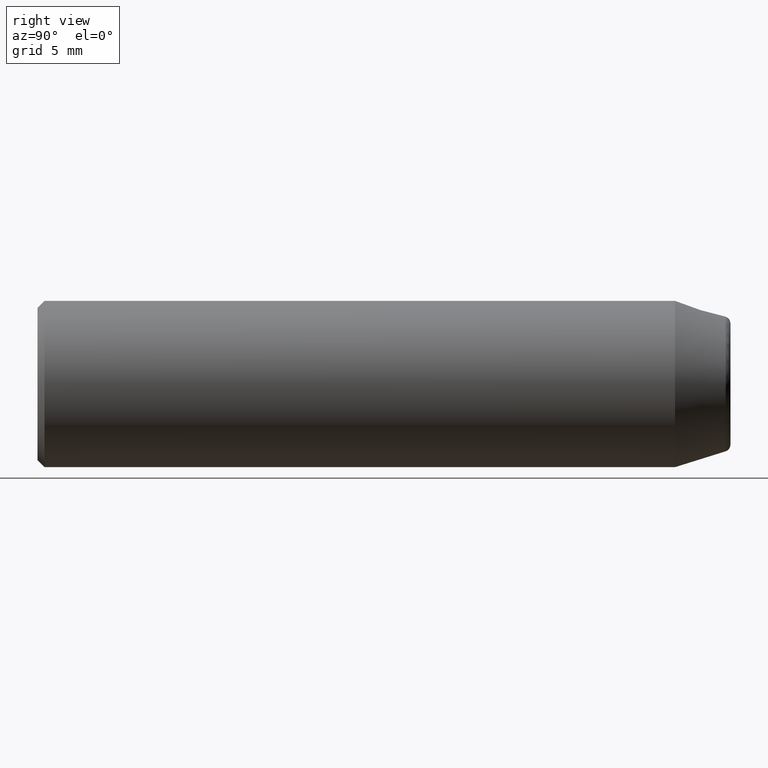
[diagram: clean part render]
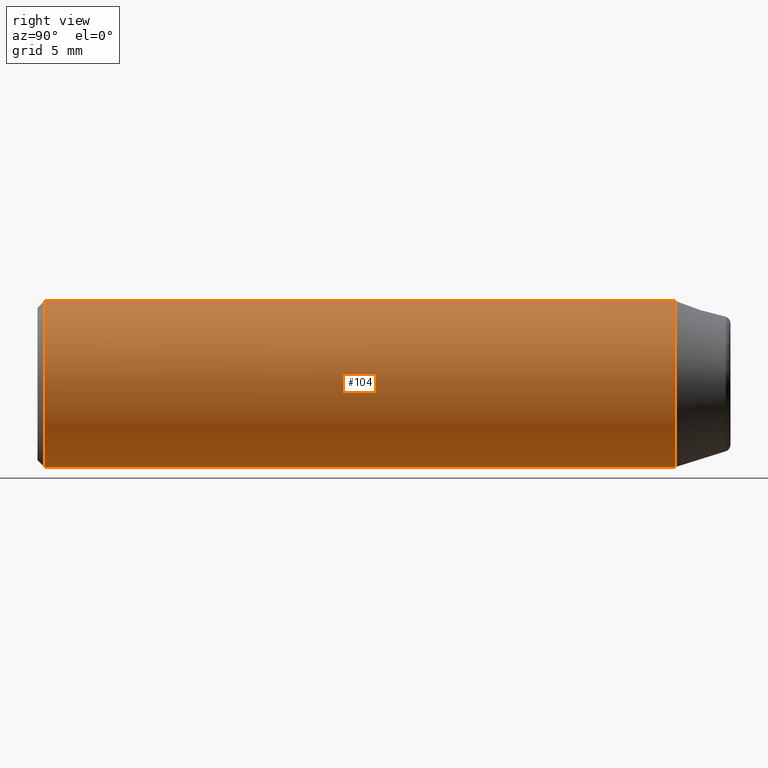
[diagram: same view with one face highlighted and labeled with its STEP entity id]
A machine part, right view. The second image highlights one B-rep face of the part: STEP entity #104.
In plain terms, the highlighted cylindrical surface (bore or boss wall) has radius 6 mm, axis along (-0, -1, -0).
Its self-contained STEP definition (entity closure, byte-faithful):
#10 = CARTESIAN_POINT ( 'NONE',  ( 0.000000000000000000, 45.99999999999998579, 0.000000000000000000 ) ) ;
#51 = DIRECTION ( 'NONE',  ( -0.000000000000000000, -1.000000000000000000, -0.000000000000000000 ) ) ;
#65 = DIRECTION ( 'NONE',  ( -0.000000000000000000, -1.000000000000000000, -0.000000000000000000 ) ) ;
#70 = VERTEX_POINT ( 'NONE', #254 ) ;
#71 = CIRCLE ( 'NONE', #103, 6.000000000000000888 ) ;
#72 = CARTESIAN_POINT ( 'NONE',  ( 0.000000000000000000, 0.5000000000000004441, 0.000000000000000000 ) ) ;
#89 = FACE_OUTER_BOUND ( 'NONE', #234, .T. ) ;
#103 = AXIS2_PLACEMENT_3D ( 'NONE', #10, #65, #116 ) ;
#104 = ADVANCED_FACE ( 'NONE', ( #203, #89 ), #283, .T. ) ;
#116 = DIRECTION ( 'NONE',  ( 0.000000000000000000, 0.000000000000000000, -1.000000000000000000 ) ) ;
#118 = EDGE_CURVE ( 'NONE', #164, #164, #127, .T. ) ;
#127 = CIRCLE ( 'NONE', #295, 6.000000000000000888 ) ;
#137 = EDGE_LOOP ( 'NONE', ( #226 ) ) ;
#142 = CARTESIAN_POINT ( 'NONE',  ( 0.000000000000000000, 0.5000000000000004441, -6.000000000000000888 ) ) ;
#164 = VERTEX_POINT ( 'NONE', #142 ) ;
#177 = AXIS2_PLACEMENT_3D ( 'NONE', #239, #51, #263 ) ;
#203 = FACE_OUTER_BOUND ( 'NONE', #137, .T. ) ;
#212 = ORIENTED_EDGE ( 'NONE', *, *, #292, .T. ) ;
#217 = DIRECTION ( 'NONE',  ( 0.000000000000000000, 0.000000000000000000, -1.000000000000000000 ) ) ;
#226 = ORIENTED_EDGE ( 'NONE', *, *, #118, .T. ) ;
#234 = EDGE_LOOP ( 'NONE', ( #212 ) ) ;
#239 = CARTESIAN_POINT ( 'NONE',  ( 0.000000000000000000, 25.00000000000000000, 0.000000000000000000 ) ) ;
#243 = DIRECTION ( 'NONE',  ( 0.000000000000000000, 1.000000000000000000, 0.000000000000000000 ) ) ;
#254 = CARTESIAN_POINT ( 'NONE',  ( 0.000000000000000000, 45.99999999999998579, -6.000000000000000888 ) ) ;
#263 = DIRECTION ( 'NONE',  ( 0.000000000000000000, 0.000000000000000000, -1.000000000000000000 ) ) ;
#283 = CYLINDRICAL_SURFACE ( 'NONE', #177, 6.000000000000000888 ) ;
#292 = EDGE_CURVE ( 'NONE', #70, #70, #71, .T. ) ;
#295 = AXIS2_PLACEMENT_3D ( 'NONE', #72, #243, #217 ) ;